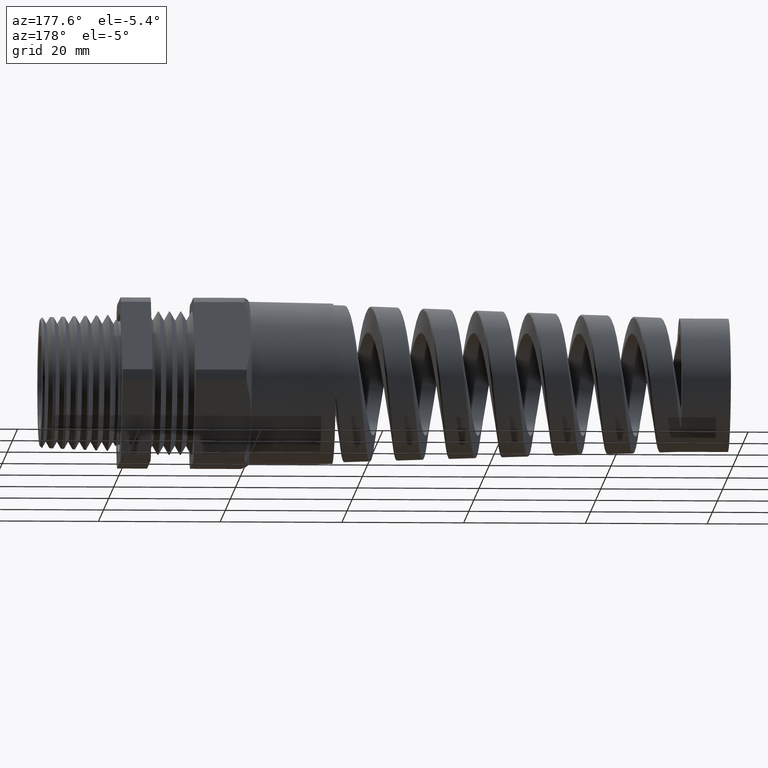
[diagram: clean part render]
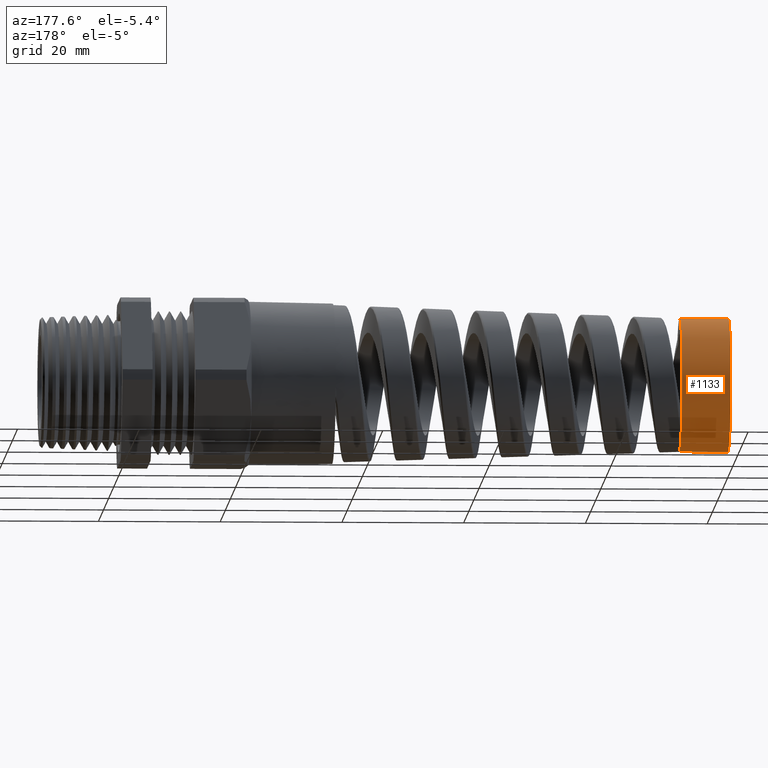
[diagram: same view with one face highlighted and labeled with its STEP entity id]
A machine part, auxiliary view. The second image highlights one B-rep face of the part: STEP entity #1133.
In plain terms, the highlighted cylindrical surface (partial cylindrical patch) has radius 10.9889 mm, axis along (1, 0, 0).
Its self-contained STEP definition (entity closure, byte-faithful):
#1112 = ORIENTED_EDGE ( 'NONE', *, *, #1113, .T. ) ;
#1113 = EDGE_CURVE ( 'NONE', #1141, #1114, #11247, .T. ) ;
#1114 = VERTEX_POINT ( 'NONE', #11309 ) ;
#1115 = ORIENTED_EDGE ( 'NONE', *, *, #1116, .F. ) ;
#1116 = EDGE_CURVE ( 'NONE', #1117, #1114, #11308, .T. ) ;
#1117 = VERTEX_POINT ( 'NONE', #11303 ) ;
#1118 = ORIENTED_EDGE ( 'NONE', *, *, #1119, .F. ) ;
#1119 = EDGE_CURVE ( 'NONE', #1138, #1117, #11302, .T. ) ;
#1133 = ADVANCED_FACE ( 'NONE', ( #11336 ), #11335, .T. ) ;
#1134 = EDGE_LOOP ( 'NONE', ( #1135, #1139, #1112, #1115, #1118 ) ) ;
#1135 = ORIENTED_EDGE ( 'NONE', *, *, #1136, .F. ) ;
#1136 = EDGE_CURVE ( 'NONE', #1137, #1138, #11334, .T. ) ;
#1137 = VERTEX_POINT ( 'NONE', #11325 ) ;
#1138 = VERTEX_POINT ( 'NONE', #11324 ) ;
#1139 = ORIENTED_EDGE ( 'NONE', *, *, #1140, .T. ) ;
#1140 = EDGE_CURVE ( 'NONE', #1137, #1141, #11323, .T. ) ;
#1141 = VERTEX_POINT ( 'NONE', #11319 ) ;
#11238 = DIRECTION ( 'NONE',  ( 0.0000000000000000000, 0.0000000000000000000, 1.000000000000000000 ) ) ;
#11239 = DIRECTION ( 'NONE',  ( -1.000000000000000000, 0.0000000000000000000, 0.0000000000000000000 ) ) ;
#11240 = CARTESIAN_POINT ( 'NONE',  ( -3.624800000000000000, 0.0000000000000000000, 0.0000000000000000000 ) ) ;
#11241 = AXIS2_PLACEMENT_3D ( 'NONE', #11240, #11239, #11238 ) ;
#11247 = CIRCLE ( 'NONE', #11241, 0.4326356290387465800 ) ;
#11299 = DIRECTION ( 'NONE',  ( 1.000000000000000000, 0.0000000000000000000, 0.0000000000000000000 ) ) ;
#11300 = VECTOR ( 'NONE', #11299, 39.37007874015748100 ) ;
#11301 = CARTESIAN_POINT ( 'NONE',  ( -3.939999999999999900, 0.0000000000000000000, -0.4326356290387465800 ) ) ;
#11302 = LINE ( 'NONE', #11301, #11300 ) ;
#11303 = CARTESIAN_POINT ( 'NONE',  ( -3.624800000000000000, 0.0000000000000000000, -0.4326356290387456400 ) ) ;
#11304 = DIRECTION ( 'NONE',  ( 0.0000000000000000000, 0.0000000000000000000, -1.000000000000000000 ) ) ;
#11305 = DIRECTION ( 'NONE',  ( 1.000000000000000000, 0.0000000000000000000, 0.0000000000000000000 ) ) ;
#11306 = CARTESIAN_POINT ( 'NONE',  ( -3.624800000000000000, 0.0000000000000000000, 0.0000000000000000000 ) ) ;
#11307 = AXIS2_PLACEMENT_3D ( 'NONE', #11306, #11305, #11304 ) ;
#11308 = CIRCLE ( 'NONE', #11307, 0.4326356290387456400 ) ;
#11309 = CARTESIAN_POINT ( 'NONE',  ( -3.624800000000000000, 0.2513081242311751000, -0.3521616308020500400 ) ) ;
#11319 = CARTESIAN_POINT ( 'NONE',  ( -3.624800000000000000, 5.298258382994027100E-017, 0.4326356290387465800 ) ) ;
#11320 = DIRECTION ( 'NONE',  ( 1.000000000000000000, 0.0000000000000000000, 0.0000000000000000000 ) ) ;
#11321 = VECTOR ( 'NONE', #11320, 39.37007874015748100 ) ;
#11322 = CARTESIAN_POINT ( 'NONE',  ( -3.939999999999999900, 5.298258382994027100E-017, 0.4326356290387465800 ) ) ;
#11323 = LINE ( 'NONE', #11322, #11321 ) ;
#11324 = CARTESIAN_POINT ( 'NONE',  ( -3.939999999999999900, 0.0000000000000000000, -0.4326356290387465800 ) ) ;
#11325 = CARTESIAN_POINT ( 'NONE',  ( -3.939999999999999900, 5.298258382994027100E-017, 0.4326356290387465800 ) ) ;
#11326 = DIRECTION ( 'NONE',  ( 0.0000000000000000000, 0.0000000000000000000, 1.000000000000000000 ) ) ;
#11327 = DIRECTION ( 'NONE',  ( -1.000000000000000000, 0.0000000000000000000, 0.0000000000000000000 ) ) ;
#11328 = CARTESIAN_POINT ( 'NONE',  ( -3.939999999999999900, 0.0000000000000000000, 0.0000000000000000000 ) ) ;
#11329 = AXIS2_PLACEMENT_3D ( 'NONE', #11328, #11327, #11326 ) ;
#11330 = DIRECTION ( 'NONE',  ( 0.0000000000000000000, 0.0000000000000000000, -1.000000000000000000 ) ) ;
#11331 = DIRECTION ( 'NONE',  ( 1.000000000000000000, 0.0000000000000000000, 0.0000000000000000000 ) ) ;
#11332 = CARTESIAN_POINT ( 'NONE',  ( -3.939999999999999900, 0.0000000000000000000, 0.0000000000000000000 ) ) ;
#11333 = AXIS2_PLACEMENT_3D ( 'NONE', #11332, #11331, #11330 ) ;
#11334 = CIRCLE ( 'NONE', #11329, 0.4326356290387465800 ) ;
#11335 = CYLINDRICAL_SURFACE ( 'NONE', #11333, 0.4326356290387465800 ) ;
#11336 = FACE_OUTER_BOUND ( 'NONE', #1134, .T. ) ;